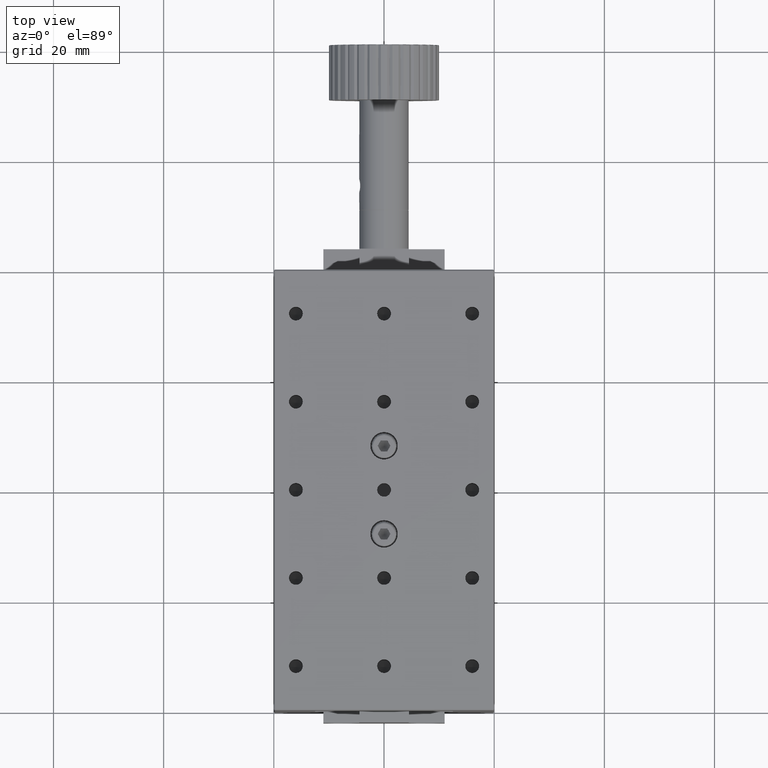
[diagram: clean part render]
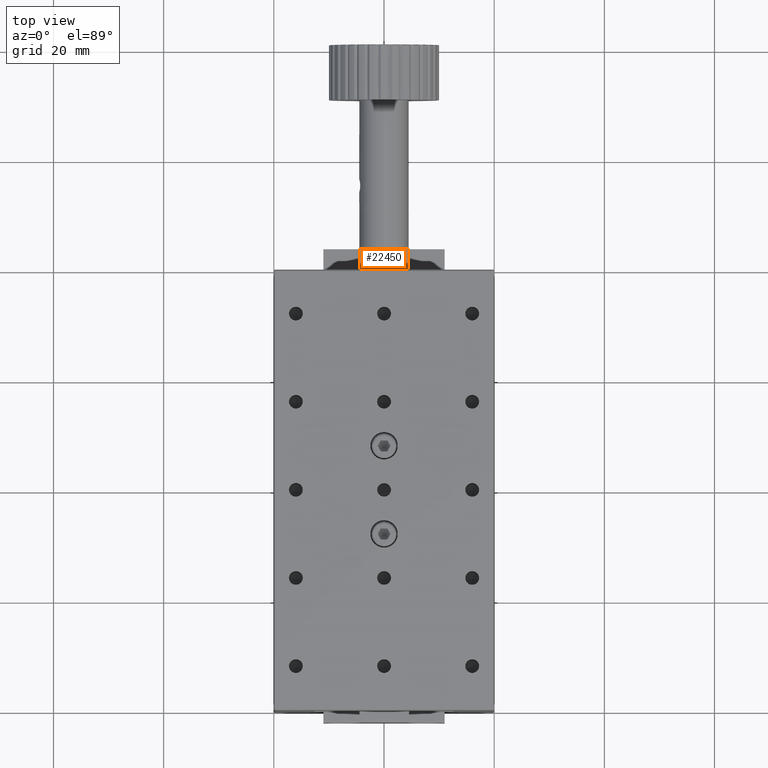
[diagram: same view with one face highlighted and labeled with its STEP entity id]
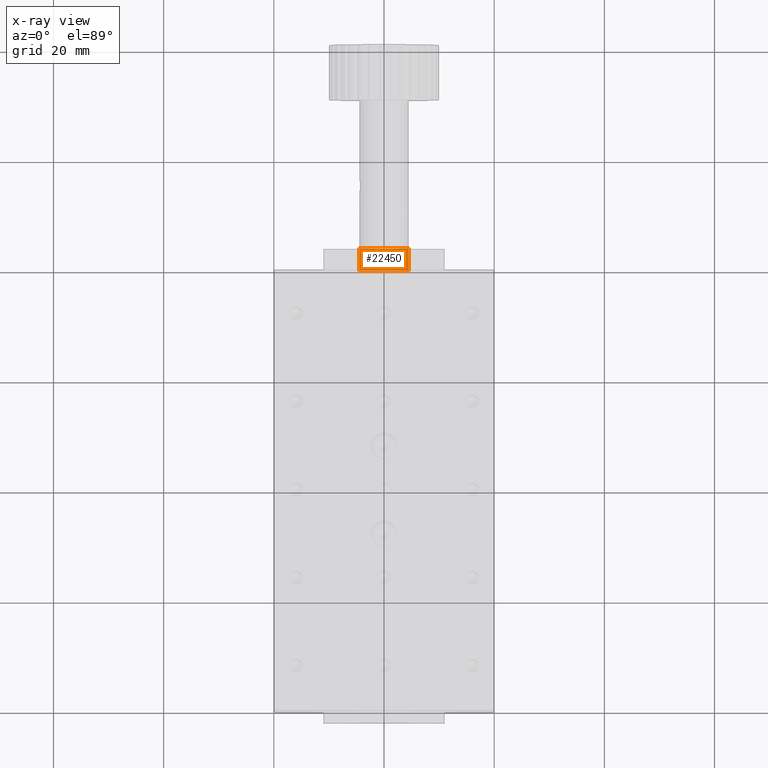
[diagram: x-ray of the same camera — body ghosted, the highlighted face saturated]
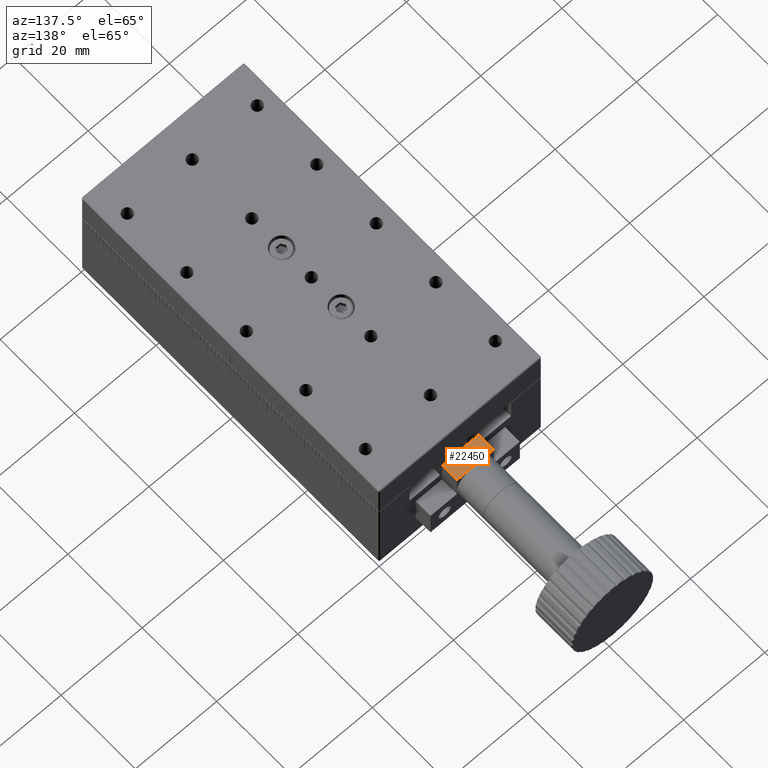
[diagram: same view with one face highlighted and labeled with its STEP entity id]
A machine part, top view. The second image highlights one B-rep face of the part: STEP entity #22450.
The next image is the same camera in x-ray: the body ghosted, the highlighted face saturated — about 0% of this face is hidden behind the body in this view.
A second angle (auxiliary view) of the same face is appended — the face is thin or edge-on in the first view.
In plain terms, the highlighted planar face has unit normal (-0, -0, -1).
Its self-contained STEP definition (entity closure, byte-faithful):
#335 = CARTESIAN_POINT ( 'NONE',  ( 4.500000000000000900, 41.99999999999999300, 19.00000000000000000 ) ) ;
#1144 = CARTESIAN_POINT ( 'NONE',  ( -4.500000002500000200, 44.00000000000000000, 18.99999999999999600 ) ) ;
#2381 = LINE ( 'NONE', #8624, #18598 ) ;
#2574 = CARTESIAN_POINT ( 'NONE',  ( -4.500000002500000200, 40.00000000000000000, 18.99999999999999600 ) ) ;
#3241 = VERTEX_POINT ( 'NONE', #21687 ) ;
#3840 = PLANE ( 'NONE',  #13995 ) ;
#3866 = ORIENTED_EDGE ( 'NONE', *, *, #7815, .T. ) ;
#4158 = EDGE_CURVE ( 'NONE', #3241, #19779, #21212, .T. ) ;
#4316 = CARTESIAN_POINT ( 'NONE',  ( 4.500000002500001100, 40.00000000000000000, 19.00000000000000000 ) ) ;
#4817 = CARTESIAN_POINT ( 'NONE',  ( -4.500000000000000900, 41.99999999999999300, 19.00000000000000000 ) ) ;
#6059 = VECTOR ( 'NONE', #11473, 1000.000000000000000 ) ;
#6364 = EDGE_LOOP ( 'NONE', ( #20668, #24670, #23077, #3866 ) ) ;
#7815 = EDGE_CURVE ( 'NONE', #3241, #11130, #2381, .T. ) ;
#8155 = DIRECTION ( 'NONE',  ( 0.0000000000000000000, -1.000000000000000000, 0.0000000000000000000 ) ) ;
#8624 = CARTESIAN_POINT ( 'NONE',  ( 0.0000000000000000000, 44.00000000000000000, 19.00000000000000000 ) ) ;
#9303 = VECTOR ( 'NONE', #27191, 1000.000000000000000 ) ;
#9336 = CARTESIAN_POINT ( 'NONE',  ( 0.0000000000000000000, 40.00000000000000000, 19.00000000000000000 ) ) ;
#11130 = VERTEX_POINT ( 'NONE', #1144 ) ;
#11473 = DIRECTION ( 'NONE',  ( -1.000000000000000000, -0.0000000000000000000, -0.0000000000000000000 ) ) ;
#12590 = EDGE_CURVE ( 'NONE', #19779, #19834, #22944, .T. ) ;
#13995 = AXIS2_PLACEMENT_3D ( 'NONE', #24987, #20819, #8155 ) ;
#16717 = FACE_OUTER_BOUND ( 'NONE', #6364, .T. ) ;
#17074 = DIRECTION ( 'NONE',  ( -1.000000000000000000, -0.0000000000000000000, -0.0000000000000000000 ) ) ;
#17496 = DIRECTION ( 'NONE',  ( -0.0000000000000000000, -1.000000000000000000, -0.0000000000000000000 ) ) ;
#18598 = VECTOR ( 'NONE', #17074, 1000.000000000000000 ) ;
#18673 = EDGE_CURVE ( 'NONE', #11130, #19834, #26699, .T. ) ;
#19779 = VERTEX_POINT ( 'NONE', #4316 ) ;
#19834 = VERTEX_POINT ( 'NONE', #2574 ) ;
#20453 = VECTOR ( 'NONE', #17496, 1000.000000000000000 ) ;
#20668 = ORIENTED_EDGE ( 'NONE', *, *, #18673, .T. ) ;
#20819 = DIRECTION ( 'NONE',  ( -0.0000000000000000000, -0.0000000000000000000, -1.000000000000000000 ) ) ;
#21212 = LINE ( 'NONE', #335, #9303 ) ;
#21687 = CARTESIAN_POINT ( 'NONE',  ( 4.500000002500001100, 44.00000000000000000, 19.00000000000000000 ) ) ;
#22450 = ADVANCED_FACE ( 'NONE', ( #16717 ), #3840, .F. ) ;
#22944 = LINE ( 'NONE', #9336, #6059 ) ;
#23077 = ORIENTED_EDGE ( 'NONE', *, *, #4158, .F. ) ;
#24670 = ORIENTED_EDGE ( 'NONE', *, *, #12590, .F. ) ;
#24987 = CARTESIAN_POINT ( 'NONE',  ( 4.500000000000000900, 44.00000000000000000, 19.00000000000000000 ) ) ;
#26699 = LINE ( 'NONE', #4817, #20453 ) ;
#27191 = DIRECTION ( 'NONE',  ( 0.0000000000000000000, -1.000000000000000000, 0.0000000000000000000 ) ) ;